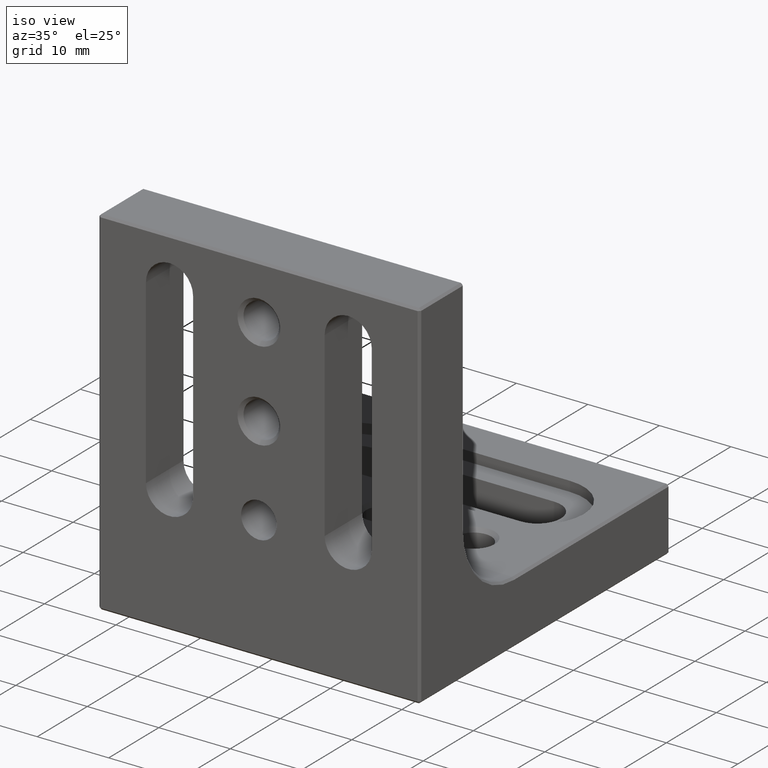
[diagram: clean part render]
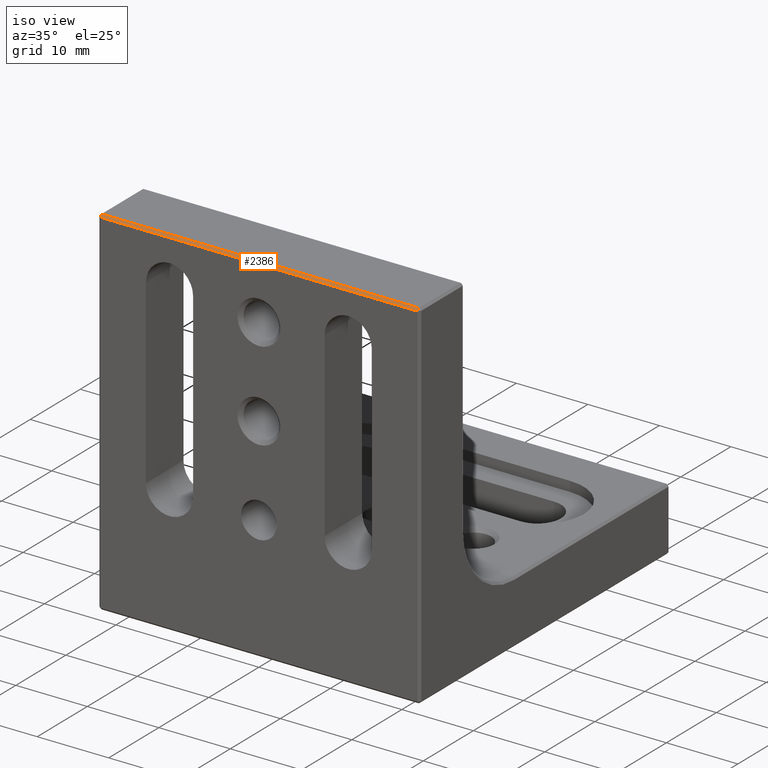
[diagram: same view with one face highlighted and labeled with its STEP entity id]
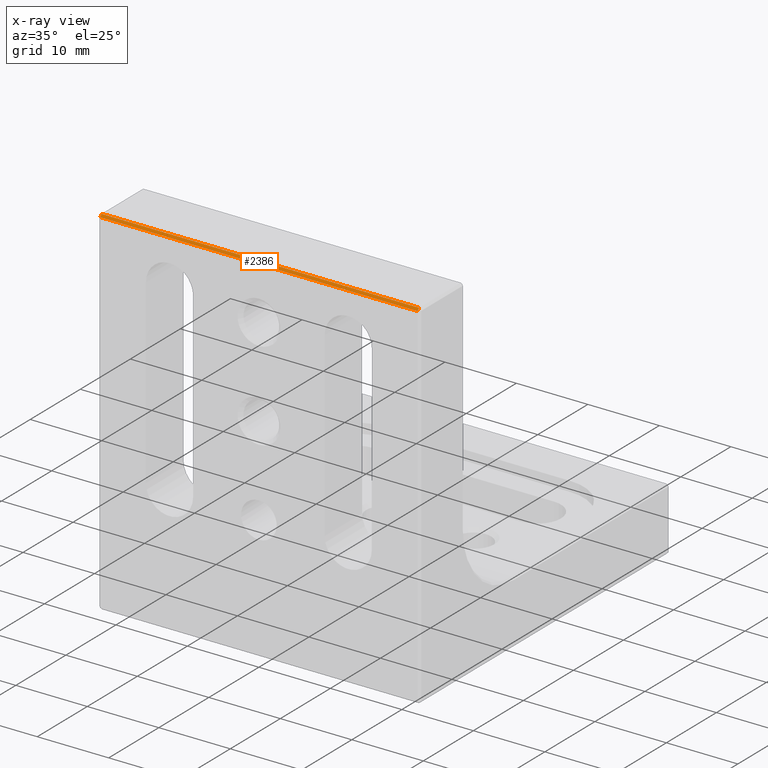
[diagram: x-ray of the same camera — body ghosted, the highlighted face saturated]
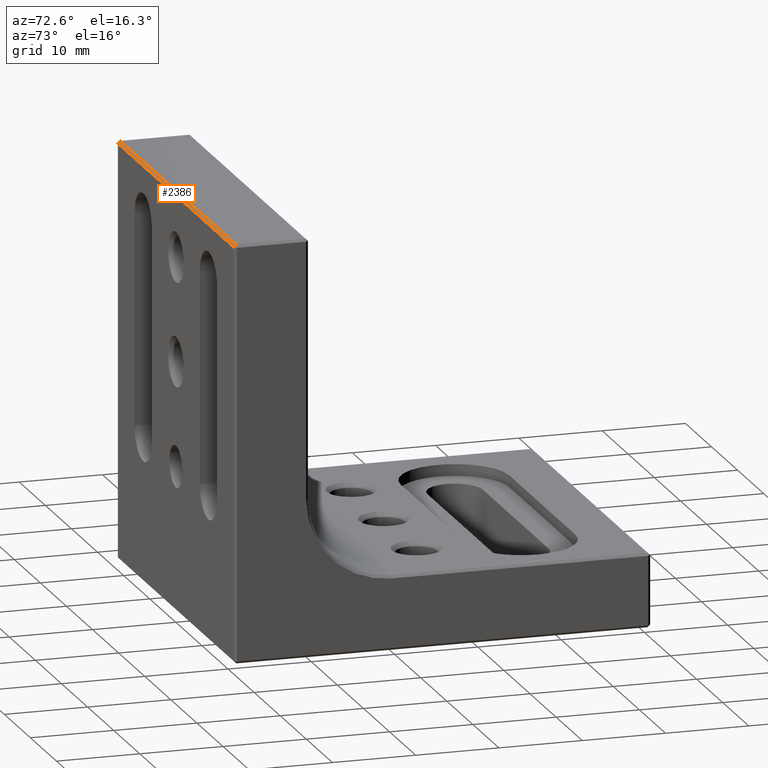
[diagram: same view with one face highlighted and labeled with its STEP entity id]
A machine part, iso view. The second image highlights one B-rep face of the part: STEP entity #2386.
The next image is the same camera in x-ray: the body ghosted, the highlighted face saturated — about 0% of this face is hidden behind the body in this view.
A second angle (auxiliary view) of the same face is appended — the face is thin or edge-on in the first view.
In plain terms, the highlighted planar face has unit normal (0, 0.7071, -0.7071).
Its self-contained STEP definition (entity closure, byte-faithful):
#183 = VERTEX_POINT ( 'NONE', #2602 ) ;
#282 = DIRECTION ( 'NONE',  ( -1.000000000000000000, 0.000000000000000000, 0.000000000000000000 ) ) ;
#358 = ORIENTED_EDGE ( 'NONE', *, *, #3630, .F. ) ;
#528 = DIRECTION ( 'NONE',  ( 2.775557561562891967E-17, -0.7071067811865484609, -0.7071067811865465735 ) ) ;
#642 = LINE ( 'NONE', #3585, #2565 ) ;
#729 = VECTOR ( 'NONE', #282, 1000.000000000000000 ) ;
#1001 = ORIENTED_EDGE ( 'NONE', *, *, #2140, .F. ) ;
#1076 = LINE ( 'NONE', #3146, #2192 ) ;
#1115 = CARTESIAN_POINT ( 'NONE',  ( 22.50000000000000000, -6.086494591762346803E-15, 49.70000000000000995 ) ) ;
#1131 = PLANE ( 'NONE',  #3292 ) ;
#1215 = EDGE_CURVE ( 'NONE', #2397, #3002, #1076, .T. ) ;
#1511 = CARTESIAN_POINT ( 'NONE',  ( 22.20000000000000284, 0.2999999999999894973, 50.00000000000000000 ) ) ;
#1542 = CARTESIAN_POINT ( 'NONE',  ( -22.20000000000000284, -6.086494591762346803E-15, 49.70000000000000995 ) ) ;
#1562 = EDGE_CURVE ( 'NONE', #183, #2397, #642, .T. ) ;
#1756 = LINE ( 'NONE', #3485, #729 ) ;
#1815 = DIRECTION ( 'NONE',  ( 1.000000000000000000, 0.000000000000000000, 0.000000000000000000 ) ) ;
#1851 = CARTESIAN_POINT ( 'NONE',  ( 22.20000000000000284, -6.086494591762346803E-15, 49.70000000000000995 ) ) ;
#1917 = DIRECTION ( 'NONE',  ( 2.775557561562891967E-17, 0.7071067811865484609, 0.7071067811865465735 ) ) ;
#2140 = EDGE_CURVE ( 'NONE', #3398, #183, #3052, .T. ) ;
#2153 = ORIENTED_EDGE ( 'NONE', *, *, #1215, .F. ) ;
#2192 = VECTOR ( 'NONE', #528, 1000.000000000000000 ) ;
#2203 = CARTESIAN_POINT ( 'NONE',  ( -22.20000000000000284, -6.086494591762346803E-15, 49.70000000000000995 ) ) ;
#2302 = DIRECTION ( 'NONE',  ( 0.000000000000000000, 0.7071067811865464625, -0.7071067811865485719 ) ) ;
#2386 = ADVANCED_FACE ( 'NONE', ( #3761 ), #1131, .F. ) ;
#2397 = VERTEX_POINT ( 'NONE', #1511 ) ;
#2464 = EDGE_LOOP ( 'NONE', ( #2153, #3685, #1001, #358 ) ) ;
#2492 = VECTOR ( 'NONE', #1917, 1000.000000000000000 ) ;
#2565 = VECTOR ( 'NONE', #1815, 1000.000000000000000 ) ;
#2602 = CARTESIAN_POINT ( 'NONE',  ( -22.20000000000000284, 0.2999999999999894973, 50.00000000000000000 ) ) ;
#3002 = VERTEX_POINT ( 'NONE', #1851 ) ;
#3052 = LINE ( 'NONE', #2203, #2492 ) ;
#3146 = CARTESIAN_POINT ( 'NONE',  ( 22.20000000000000284, 0.2999999999999894973, 50.00000000000000000 ) ) ;
#3292 = AXIS2_PLACEMENT_3D ( 'NONE', #1115, #2302, #3779 ) ;
#3398 = VERTEX_POINT ( 'NONE', #1542 ) ;
#3485 = CARTESIAN_POINT ( 'NONE',  ( 22.50000000000000000, -6.086494591762346803E-15, 49.70000000000000995 ) ) ;
#3585 = CARTESIAN_POINT ( 'NONE',  ( 22.50000000000000000, 0.2999999999999894973, 50.00000000000000000 ) ) ;
#3630 = EDGE_CURVE ( 'NONE', #3002, #3398, #1756, .T. ) ;
#3685 = ORIENTED_EDGE ( 'NONE', *, *, #1562, .F. ) ;
#3761 = FACE_OUTER_BOUND ( 'NONE', #2464, .T. ) ;
#3779 = DIRECTION ( 'NONE',  ( -1.000000000000000000, 0.000000000000000000, 0.000000000000000000 ) ) ;